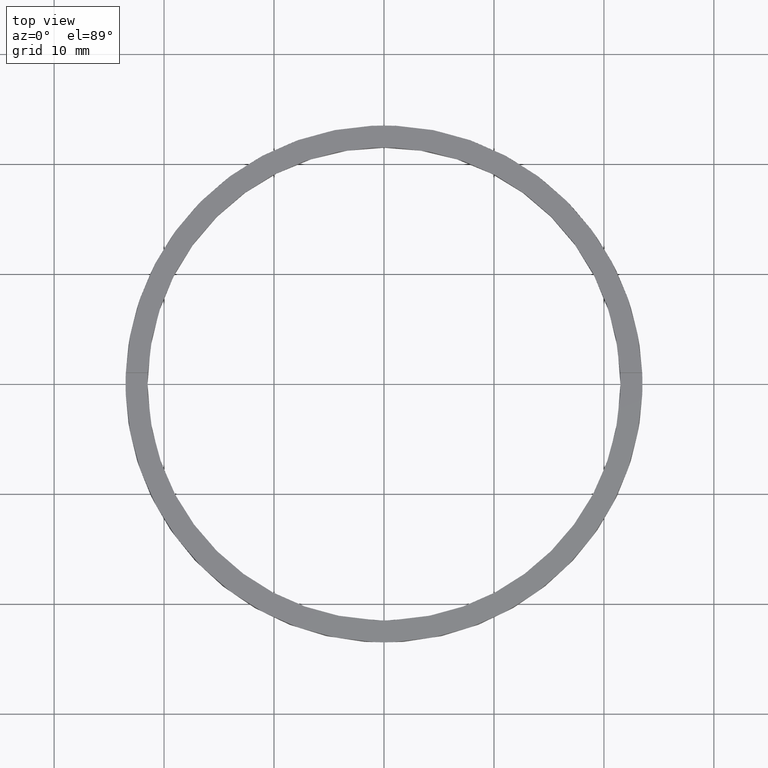
[diagram: clean part render]
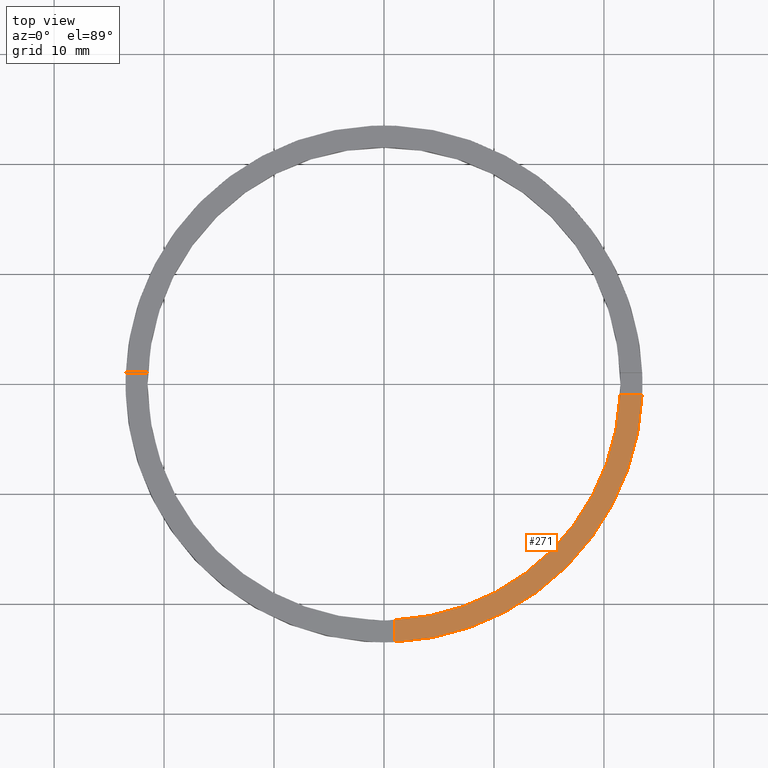
[diagram: same view with one face highlighted and labeled with its STEP entity id]
A machine part, top view. The second image highlights one B-rep face of the part: STEP entity #271.
In plain terms, the highlighted planar face has unit normal (0, 0, 1).
Its self-contained STEP definition (entity closure, byte-faithful):
#11 = AXIS2_PLACEMENT_3D ( 'NONE', #760, #40, #524 ) ;
#14 = VERTEX_POINT ( 'NONE', #103 ) ;
#40 = DIRECTION ( 'NONE',  ( 0.000000000000000000, 0.000000000000000000, 1.000000000000000000 ) ) ;
#49 = VERTEX_POINT ( 'NONE', #99 ) ;
#80 = CARTESIAN_POINT ( 'NONE',  ( 0.9999999999998386846, -23.47871376374779473, 2.500000000000000000 ) ) ;
#99 = CARTESIAN_POINT ( 'NONE',  ( 0.9999999999998384625, -21.47673159491453276, 2.500000000000000000 ) ) ;
#101 = DIRECTION ( 'NONE',  ( 1.000000000000000000, 4.336808689942017120E-17, 0.000000000000000000 ) ) ;
#103 = CARTESIAN_POINT ( 'NONE',  ( 21.47673159491452211, -1.000000000000158096, 2.500000000000000000 ) ) ;
#130 = CARTESIAN_POINT ( 'NONE',  ( 0.000000000000000000, 0.000000000000000000, 2.500000000000000000 ) ) ;
#143 = PLANE ( 'NONE',  #422 ) ;
#151 = ORIENTED_EDGE ( 'NONE', *, *, #395, .F. ) ;
#159 = VERTEX_POINT ( 'NONE', #443 ) ;
#183 = LINE ( 'NONE', #628, #445 ) ;
#186 = DIRECTION ( 'NONE',  ( -1.301042606982605074E-16, 1.000000000000000000, -0.000000000000000000 ) ) ;
#195 = CARTESIAN_POINT ( 'NONE',  ( 0.9999999999998377964, -13.50000000000018296, 2.500000000000000000 ) ) ;
#210 = FACE_OUTER_BOUND ( 'NONE', #571, .T. ) ;
#224 = VECTOR ( 'NONE', #186, 1000.000000000000000 ) ;
#239 = LINE ( 'NONE', #195, #224 ) ;
#271 = ADVANCED_FACE ( 'NONE', ( #210 ), #143, .T. ) ;
#329 = DIRECTION ( 'NONE',  ( 1.000000000000000000, 0.000000000000000000, -0.000000000000000000 ) ) ;
#395 = EDGE_CURVE ( 'NONE', #49, #14, #715, .T. ) ;
#414 = ORIENTED_EDGE ( 'NONE', *, *, #511, .F. ) ;
#419 = ORIENTED_EDGE ( 'NONE', *, *, #627, .T. ) ;
#422 = AXIS2_PLACEMENT_3D ( 'NONE', #130, #553, #329 ) ;
#443 = CARTESIAN_POINT ( 'NONE',  ( 23.47871376374778407, -1.000000000000157874, 2.500000000000000000 ) ) ;
#445 = VECTOR ( 'NONE', #101, 1000.000000000000000 ) ;
#489 = CIRCLE ( 'NONE', #11, 23.50000000000000355 ) ;
#511 = EDGE_CURVE ( 'NONE', #14, #159, #183, .T. ) ;
#524 = DIRECTION ( 'NONE',  ( 1.000000000000000000, 0.000000000000000000, 0.000000000000000000 ) ) ;
#553 = DIRECTION ( 'NONE',  ( 0.000000000000000000, 0.000000000000000000, 1.000000000000000000 ) ) ;
#555 = VERTEX_POINT ( 'NONE', #80 ) ;
#564 = AXIS2_PLACEMENT_3D ( 'NONE', #629, #680, #777 ) ;
#571 = EDGE_LOOP ( 'NONE', ( #414, #151, #685, #419 ) ) ;
#627 = EDGE_CURVE ( 'NONE', #555, #159, #489, .T. ) ;
#628 = CARTESIAN_POINT ( 'NONE',  ( 13.49999999999999822, -1.000000000000158318, 2.500000000000000000 ) ) ;
#629 = CARTESIAN_POINT ( 'NONE',  ( 0.000000000000000000, 0.000000000000000000, 2.500000000000000000 ) ) ;
#633 = EDGE_CURVE ( 'NONE', #555, #49, #239, .T. ) ;
#680 = DIRECTION ( 'NONE',  ( 0.000000000000000000, 0.000000000000000000, 1.000000000000000000 ) ) ;
#685 = ORIENTED_EDGE ( 'NONE', *, *, #633, .F. ) ;
#715 = CIRCLE ( 'NONE', #564, 21.50000000000000000 ) ;
#760 = CARTESIAN_POINT ( 'NONE',  ( 0.000000000000000000, 0.000000000000000000, 2.500000000000000000 ) ) ;
#777 = DIRECTION ( 'NONE',  ( 1.000000000000000000, 0.000000000000000000, 0.000000000000000000 ) ) ;